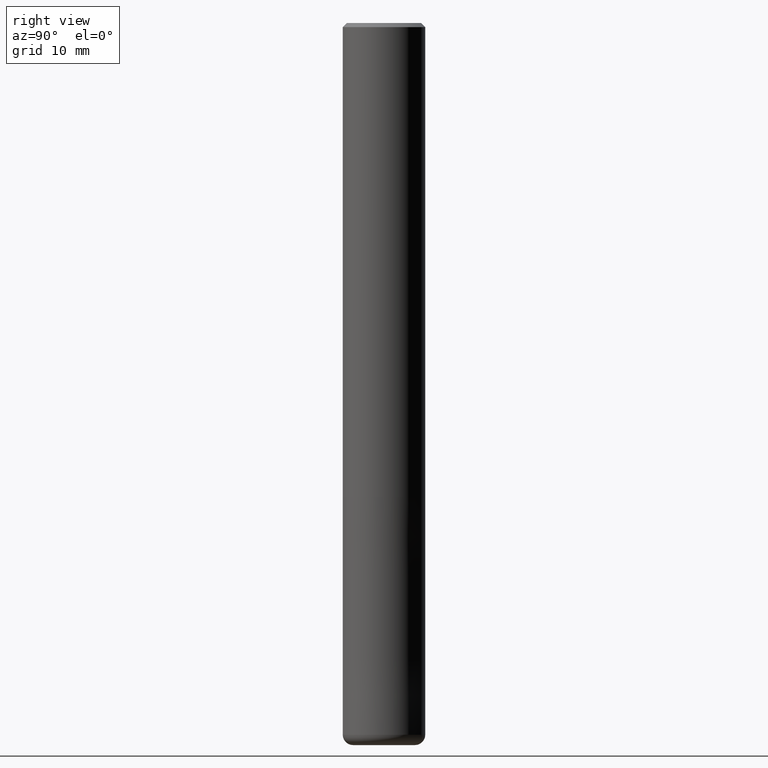
[diagram: clean part render]
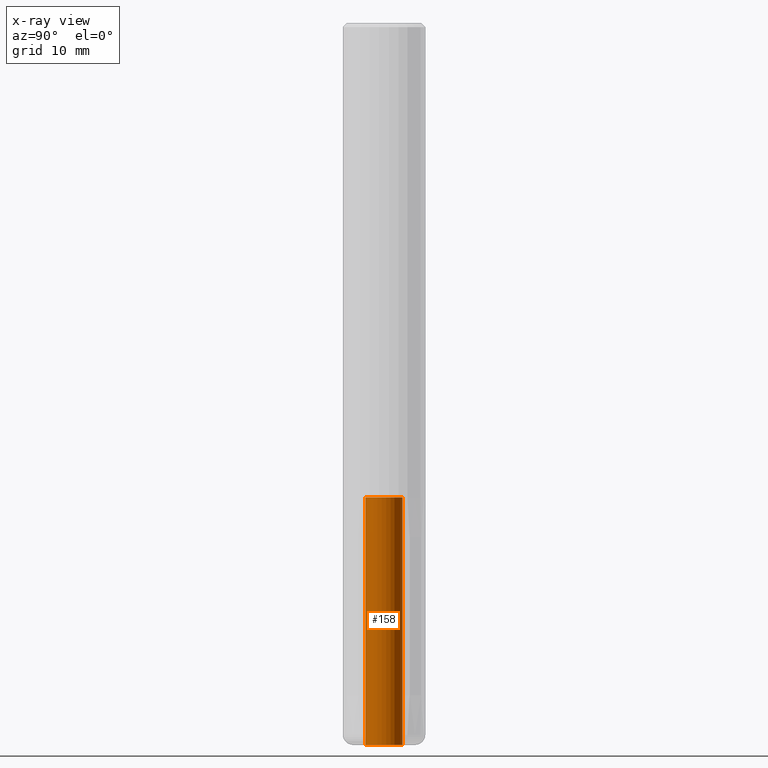
[diagram: x-ray — body ghosted, one internal face saturated and labeled with its STEP entity id]
A machine part, right view, then the same camera in x-ray: the body is ghosted and one INTERNAL B-rep face — a face not visible from any outside direction — is saturated and labeled: STEP entity #158.
In plain terms, the highlighted cylindrical surface (edge-blend (fillet) strip) has radius 1.8 mm, axis along (-0, -0, 1).
Its self-contained STEP definition (entity closure, byte-faithful):
#106=VERTEX_POINT('',#267);
#142=VERTEX_POINT('',#307);
#158=ADVANCED_FACE('',(#324),#325,.F.);
#172=VERTEX_POINT('',#340);
#174=EDGE_CURVE('',#172,#210,#342,.T.);
#208=EDGE_CURVE('',#172,#106,#383,.T.);
#210=VERTEX_POINT('',#385);
#228=EDGE_CURVE('',#142,#106,#404,.T.);
#240=EDGE_CURVE('',#210,#142,#420,.T.);
#267=CARTESIAN_POINT('',(2.20429143688028E-016,-1.8,-46.0));
#307=CARTESIAN_POINT('',(2.20429143688028E-016,-1.8,-70.0));
#324=FACE_OUTER_BOUND('',#511,.T.);
#325=CYLINDRICAL_SURFACE('',#512,1.8);
#340=CARTESIAN_POINT('',(0.0,1.8,-46.0));
#342=LINE('',#536,#537);
#383=CIRCLE('',#586,1.8);
#385=CARTESIAN_POINT('',(0.0,1.8,-70.0));
#404=LINE('',#614,#615);
#420=CIRCLE('',#634,1.8);
#511=EDGE_LOOP('',(#706,#707,#708,#709));
#512=AXIS2_PLACEMENT_3D('',#710,#711,#712);
#536=CARTESIAN_POINT('',(-2.20429143688028E-016,1.8,-58.0));
#537=VECTOR('',#732,1.0);
#586=AXIS2_PLACEMENT_3D('',#789,#790,#791);
#614=CARTESIAN_POINT('',(2.20429143688028E-016,-1.8,-58.0));
#615=VECTOR('',#812,1.0);
#634=AXIS2_PLACEMENT_3D('',#838,#839,#840);
#706=ORIENTED_EDGE('',*,*,#174,.T.);
#707=ORIENTED_EDGE('',*,*,#240,.T.);
#708=ORIENTED_EDGE('',*,*,#228,.T.);
#709=ORIENTED_EDGE('',*,*,#208,.F.);
#710=CARTESIAN_POINT('',(0.0,0.0,-58.0));
#711=DIRECTION('',(-0.0,-0.0,1.0));
#712=DIRECTION('',(0.0,1.0,0.0));
#732=DIRECTION('',(0.0,-0.0,-1.0));
#789=CARTESIAN_POINT('',(0.0,0.0,-46.0));
#790=DIRECTION('',(0.0,0.0,-1.0));
#791=DIRECTION('',(0.0,1.0,0.0));
#812=DIRECTION('',(0.0,-0.0,1.0));
#838=CARTESIAN_POINT('',(0.0,0.0,-70.0));
#839=DIRECTION('',(0.0,0.0,-1.0));
#840=DIRECTION('',(0.0,1.0,0.0));